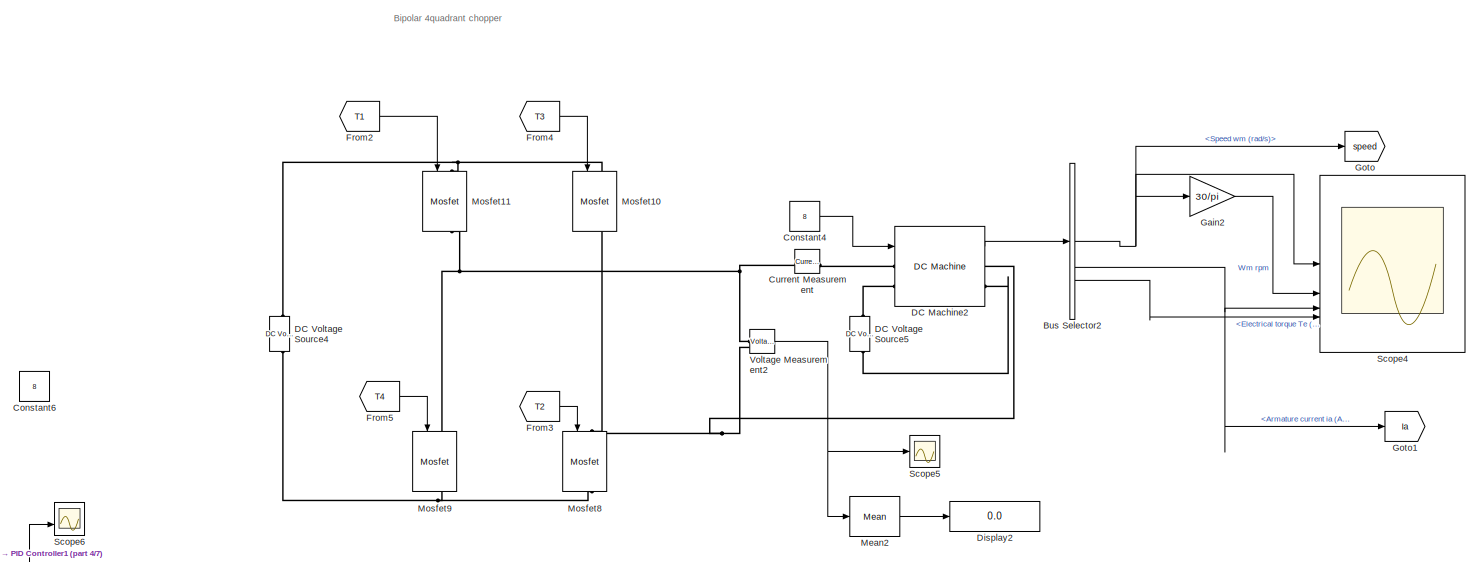
[diagram: root canvas - part 1/7, top right region]
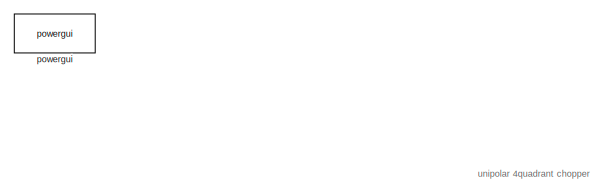
[diagram: root canvas - part 2/7, top left region]
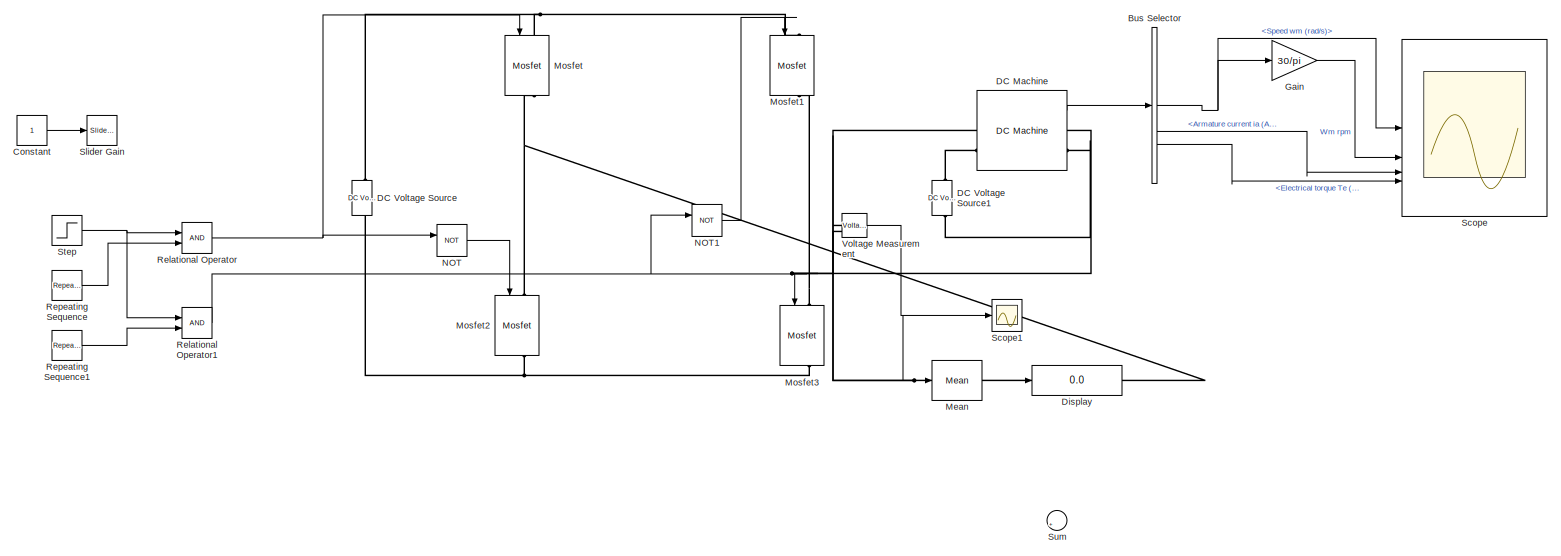
[diagram: root canvas - part 3/7, middle left region]
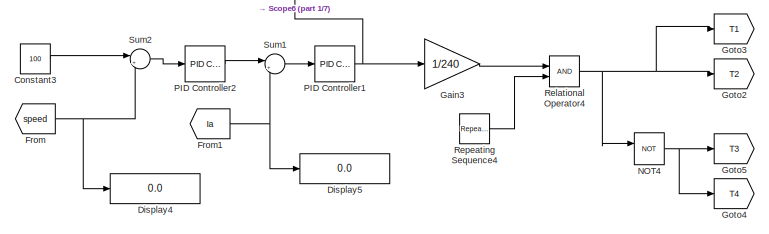
[diagram: root canvas - part 4/7, middle right region]
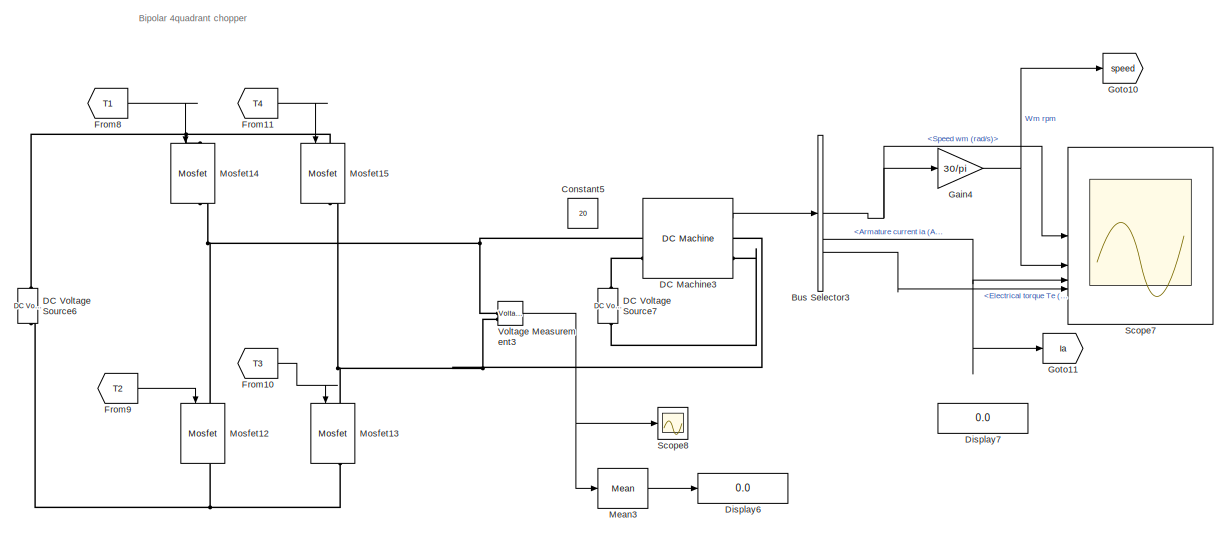
[diagram: root canvas - part 5/7, middle right region]
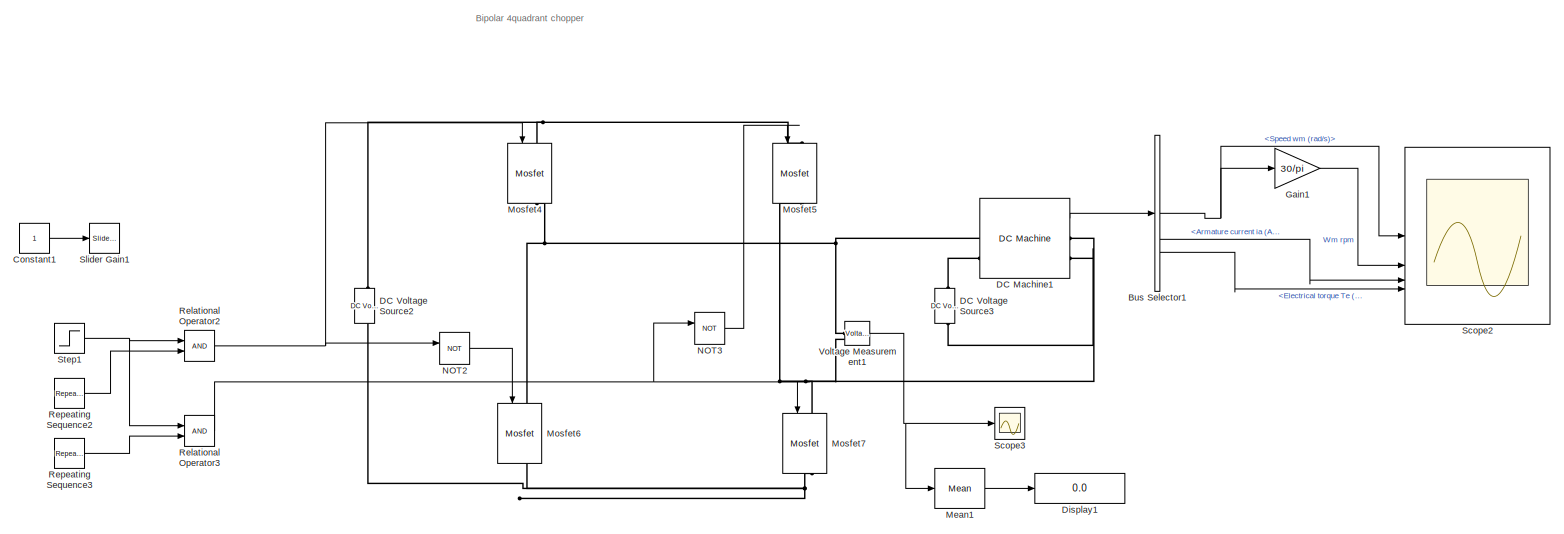
[diagram: root canvas - part 6/7, bottom left region]
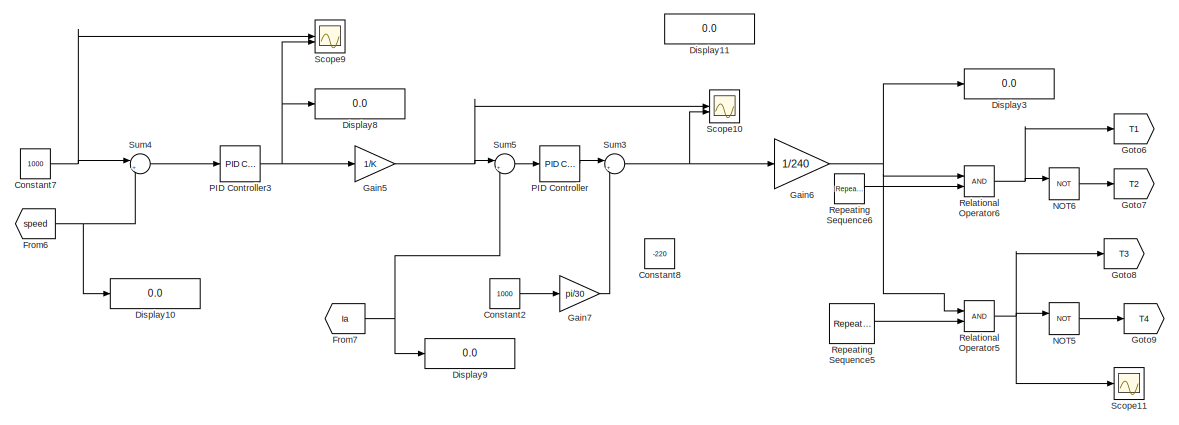
[diagram: root canvas - part 7/7, bottom right region]
MODEL slx_319daf4c872c
KIND model
CONFIG AbsTol = auto
CONFIG EnableMultiTasking = off
CONFIG FixedStep = auto
CONFIG MaxStep = 1e-4
CONFIG MinStep = auto
CONFIG RelTol = 1e-3
CONFIG SampleTimeConstraint = Unconstrained
CONFIG SolverName = ode23tb
CONFIG StartTime = 0.0
CONFIG StopTime = 10
BLOCK [BusSelector] Bus Selector
  Commented = on
  OutputSignals = Speed wm (rad/s),Armature current ia (A),Electrical torque Te (n m)
BLOCK [BusSelector] Bus Selector1
  Commented = on
  OutputSignals = Speed wm (rad/s),Armature current ia (A),Electrical torque Te (n m)
BLOCK [BusSelector] Bus Selector2
  Commented = on
  OutputSignals = Speed wm (rad/s),Armature current ia (A),Electrical torque Te (n m)
BLOCK [BusSelector] Bus Selector3
  OutputSignals = Speed wm (rad/s),Armature current ia (A),Electrical torque Te (n m)
BLOCK [Constant] Constant
  Commented = on
BLOCK [Constant] Constant1
  Commented = on
BLOCK [Constant] Constant2
  Value = 1000
BLOCK [Constant] Constant3
  Commented = on
  Value = 100
BLOCK [Constant] Constant4
  Commented = on
  Value = 8
BLOCK [Constant] Constant5
  Value = 20
BLOCK [Constant] Constant6
  Commented = on
  Value = 8
BLOCK [Constant] Constant7
  Value = 1000
BLOCK [Constant] Constant8
  Value = -220
BLOCK [Reference] Current Measurement  REF=spsCurrentMeasurementLib/Current Measurement
  Commented = on
  LibrarySourceBlock = sps_lib/Sensors and Measurements/Current Measurement
  SourceBlock = spsCurrentMeasurementLib/Current Measurement
  SourceType = Current Measurement
  UserDataPersistent = on
BLOCK [Reference] DC Machine  REF=spsDCMachineLib/DC Machine
  Commented = on
  LibrarySourceBlock = sps_lib/Electrical Machines/DC Machine
  SourceBlock = spsDCMachineLib/DC Machine
  SourceType = DC machine
BLOCK [Reference] DC Machine1  REF=spsDCMachineLib/DC Machine
  Commented = on
  LibrarySourceBlock = sps_lib/Electrical Machines/DC Machine
  SourceBlock = spsDCMachineLib/DC Machine
  SourceType = DC machine
BLOCK [Reference] DC Machine2  REF=spsDCMachineLib/DC Machine
  Commented = on
  LibrarySourceBlock = sps_lib/Electrical Machines/DC Machine
  SourceBlock = spsDCMachineLib/DC Machine
  SourceType = DC machine
BLOCK [Reference] DC Machine3  REF=spsDCMachineLib/DC Machine
  LibrarySourceBlock = sps_lib/Electrical Machines/DC Machine
  SourceBlock = spsDCMachineLib/DC Machine
  SourceType = DC machine
BLOCK [Reference] DC Voltage Source  REF=spsDCVoltageSourceLib/DC Voltage Source
  Commented = on
  LibrarySourceBlock = sps_lib/Sources/DC Voltage Source
  SourceBlock = spsDCVoltageSourceLib/DC Voltage Source
  SourceType = DC Voltage Source
BLOCK [Reference] DC Voltage Source1  REF=spsDCVoltageSourceLib/DC Voltage Source
  Commented = on
  LibrarySourceBlock = sps_lib/Sources/DC Voltage Source
  SourceBlock = spsDCVoltageSourceLib/DC Voltage Source
  SourceType = DC Voltage Source
BLOCK [Reference] DC Voltage Source2  REF=spsDCVoltageSourceLib/DC Voltage Source
  Commented = on
  LibrarySourceBlock = sps_lib/Sources/DC Voltage Source
  SourceBlock = spsDCVoltageSourceLib/DC Voltage Source
  SourceType = DC Voltage Source
BLOCK [Reference] DC Voltage Source3  REF=spsDCVoltageSourceLib/DC Voltage Source
  Commented = on
  LibrarySourceBlock = sps_lib/Sources/DC Voltage Source
  SourceBlock = spsDCVoltageSourceLib/DC Voltage Source
  SourceType = DC Voltage Source
BLOCK [Reference] DC Voltage Source4  REF=spsDCVoltageSourceLib/DC Voltage Source
  Commented = on
  LibrarySourceBlock = sps_lib/Sources/DC Voltage Source
  SourceBlock = spsDCVoltageSourceLib/DC Voltage Source
  SourceType = DC Voltage Source
BLOCK [Reference] DC Voltage Source5  REF=spsDCVoltageSourceLib/DC Voltage Source
  Commented = on
  LibrarySourceBlock = sps_lib/Sources/DC Voltage Source
  SourceBlock = spsDCVoltageSourceLib/DC Voltage Source
  SourceType = DC Voltage Source
BLOCK [Reference] DC Voltage Source6  REF=spsDCVoltageSourceLib/DC Voltage Source
  LibrarySourceBlock = sps_lib/Sources/DC Voltage Source
  SourceBlock = spsDCVoltageSourceLib/DC Voltage Source
  SourceType = DC Voltage Source
BLOCK [Reference] DC Voltage Source7  REF=spsDCVoltageSourceLib/DC Voltage Source
  LibrarySourceBlock = sps_lib/Sources/DC Voltage Source
  SourceBlock = spsDCVoltageSourceLib/DC Voltage Source
  SourceType = DC Voltage Source
BLOCK [Display] Display
  Commented = on
  Decimation = 1
BLOCK [Display] Display1
  Commented = on
  Decimation = 1
BLOCK [Display] Display10
  Decimation = 1
BLOCK [Display] Display11
  Decimation = 1
BLOCK [Display] Display2
  Commented = on
  Decimation = 1
BLOCK [Display] Display3
  Decimation = 1
BLOCK [Display] Display4
  Commented = on
  Decimation = 1
BLOCK [Display] Display5
  Commented = on
  Decimation = 1
BLOCK [Display] Display6
  Decimation = 1
BLOCK [Display] Display7
  Decimation = 1
BLOCK [Display] Display8
  Decimation = 1
BLOCK [Display] Display9
  Decimation = 1
BLOCK [From] From
  Commented = on
  GotoTag = speed
BLOCK [From] From1
  Commented = on
  GotoTag = Ia
BLOCK [From] From10
  GotoTag = T3
BLOCK [From] From11
  GotoTag = T4
BLOCK [From] From2
  Commented = on
  GotoTag = T1
BLOCK [From] From3
  Commented = on
  GotoTag = T2
BLOCK [From] From4
  Commented = on
  GotoTag = T3
BLOCK [From] From5
  Commented = on
  GotoTag = T4
BLOCK [From] From6
  GotoTag = speed
BLOCK [From] From7
  GotoTag = Ia
BLOCK [From] From8
  GotoTag = T1
BLOCK [From] From9
  GotoTag = T2
BLOCK [Gain] Gain
  Commented = on
  Gain = 30/pi
BLOCK [Gain] Gain1
  Commented = on
  Gain = 30/pi
BLOCK [Gain] Gain2
  Commented = on
  Gain = 30/pi
BLOCK [Gain] Gain3
  Commented = on
  Gain = 1/240
BLOCK [Gain] Gain4
  Gain = 30/pi
BLOCK [Gain] Gain5
  Gain = 1/K
BLOCK [Gain] Gain6
  Gain = 1/240
BLOCK [Gain] Gain7
  Gain = pi/30
BLOCK [Goto] Goto
  Commented = on
  GotoTag = speed
BLOCK [Goto] Goto1
  Commented = on
  GotoTag = Ia
BLOCK [Goto] Goto10
  GotoTag = speed
BLOCK [Goto] Goto11
  GotoTag = Ia
BLOCK [Goto] Goto2
  Commented = on
  GotoTag = T2
BLOCK [Goto] Goto3
  Commented = on
  GotoTag = T1
BLOCK [Goto] Goto4
  Commented = on
  GotoTag = T4
BLOCK [Goto] Goto5
  Commented = on
  GotoTag = T3
BLOCK [Goto] Goto6
  GotoTag = T1
BLOCK [Goto] Goto7
  GotoTag = T2
BLOCK [Goto] Goto8
  GotoTag = T3
BLOCK [Goto] Goto9
  GotoTag = T4
BLOCK [Reference] Mean  REF=spsMeanLib/Mean
  Commented = on
  LibrarySourceBlock = sps_lib/Sensors and Measurements/Mean
  SourceBlock = spsMeanLib/Mean
  SourceType = Mean
BLOCK [Reference] Mean1  REF=spsMeanLib/Mean
  Commented = on
  LibrarySourceBlock = sps_lib/Sensors and Measurements/Mean
  SourceBlock = spsMeanLib/Mean
  SourceType = Mean
BLOCK [Reference] Mean2  REF=spsMeanLib/Mean
  Commented = on
  LibrarySourceBlock = sps_lib/Sensors and Measurements/Mean
  SourceBlock = spsMeanLib/Mean
  SourceType = Mean
BLOCK [Reference] Mean3  REF=spsMeanLib/Mean
  LibrarySourceBlock = sps_lib/Sensors and Measurements/Mean
  SourceBlock = spsMeanLib/Mean
  SourceType = Mean
BLOCK [Reference] Mosfet  REF=spsMosfetLib/Mosfet
  Commented = on
  LibrarySourceBlock = sps_lib/Power Electronics/Mosfet
  NameLocation = left
  SourceBlock = spsMosfetLib/Mosfet
  SourceType = Mosfet
BLOCK [Reference] Mosfet1  REF=spsMosfetLib/Mosfet
  Commented = on
  LibrarySourceBlock = sps_lib/Power Electronics/Mosfet
  NameLocation = left
  SourceBlock = spsMosfetLib/Mosfet
  SourceType = Mosfet
BLOCK [Reference] Mosfet10  REF=spsMosfetLib/Mosfet
  Commented = on
  LibrarySourceBlock = sps_lib/Power Electronics/Mosfet
  NameLocation = left
  SourceBlock = spsMosfetLib/Mosfet
  SourceType = Mosfet
BLOCK [Reference] Mosfet11  REF=spsMosfetLib/Mosfet
  Commented = on
  LibrarySourceBlock = sps_lib/Power Electronics/Mosfet
  NameLocation = left
  SourceBlock = spsMosfetLib/Mosfet
  SourceType = Mosfet
BLOCK [Reference] Mosfet12  REF=spsMosfetLib/Mosfet
  LibrarySourceBlock = sps_lib/Power Electronics/Mosfet
  NameLocation = left
  SourceBlock = spsMosfetLib/Mosfet
  SourceType = Mosfet
BLOCK [Reference] Mosfet13  REF=spsMosfetLib/Mosfet
  LibrarySourceBlock = sps_lib/Power Electronics/Mosfet
  NameLocation = left
  SourceBlock = spsMosfetLib/Mosfet
  SourceType = Mosfet
BLOCK [Reference] Mosfet14  REF=spsMosfetLib/Mosfet
  LibrarySourceBlock = sps_lib/Power Electronics/Mosfet
  NameLocation = left
  SourceBlock = spsMosfetLib/Mosfet
  SourceType = Mosfet
BLOCK [Reference] Mosfet15  REF=spsMosfetLib/Mosfet
  LibrarySourceBlock = sps_lib/Power Electronics/Mosfet
  NameLocation = left
  SourceBlock = spsMosfetLib/Mosfet
  SourceType = Mosfet
BLOCK [Reference] Mosfet2  REF=spsMosfetLib/Mosfet
  Commented = on
  LibrarySourceBlock = sps_lib/Power Electronics/Mosfet
  NameLocation = left
  SourceBlock = spsMosfetLib/Mosfet
  SourceType = Mosfet
BLOCK [Reference] Mosfet3  REF=spsMosfetLib/Mosfet
  Commented = on
  LibrarySourceBlock = sps_lib/Power Electronics/Mosfet
  NameLocation = left
  SourceBlock = spsMosfetLib/Mosfet
  SourceType = Mosfet
BLOCK [Reference] Mosfet4  REF=spsMosfetLib/Mosfet
  Commented = on
  LibrarySourceBlock = sps_lib/Power Electronics/Mosfet
  NameLocation = left
  SourceBlock = spsMosfetLib/Mosfet
  SourceType = Mosfet
BLOCK [Reference] Mosfet5  REF=spsMosfetLib/Mosfet
  Commented = on
  LibrarySourceBlock = sps_lib/Power Electronics/Mosfet
  NameLocation = left
  SourceBlock = spsMosfetLib/Mosfet
  SourceType = Mosfet
BLOCK [Reference] Mosfet6  REF=spsMosfetLib/Mosfet
  Commented = on
  LibrarySourceBlock = sps_lib/Power Electronics/Mosfet
  NameLocation = left
  SourceBlock = spsMosfetLib/Mosfet
  SourceType = Mosfet
BLOCK [Reference] Mosfet7  REF=spsMosfetLib/Mosfet
  Commented = on
  LibrarySourceBlock = sps_lib/Power Electronics/Mosfet
  NameLocation = left
  SourceBlock = spsMosfetLib/Mosfet
  SourceType = Mosfet
BLOCK [Reference] Mosfet8  REF=spsMosfetLib/Mosfet
  Commented = on
  LibrarySourceBlock = sps_lib/Power Electronics/Mosfet
  NameLocation = left
  SourceBlock = spsMosfetLib/Mosfet
  SourceType = Mosfet
BLOCK [Reference] Mosfet9  REF=spsMosfetLib/Mosfet
  Commented = on
  LibrarySourceBlock = sps_lib/Power Electronics/Mosfet
  NameLocation = left
  SourceBlock = spsMosfetLib/Mosfet
  SourceType = Mosfet
BLOCK [Logic] NOT
  AllPortsSameDT = off
  Commented = on
  IconShape = distinctive
  Operator = NOT
  OutDataTypeStr = boolean
BLOCK [Logic] NOT1
  AllPortsSameDT = off
  Commented = on
  IconShape = distinctive
  Operator = NOT
  OutDataTypeStr = boolean
BLOCK [Logic] NOT2
  AllPortsSameDT = off
  Commented = on
  IconShape = distinctive
  Operator = NOT
  OutDataTypeStr = boolean
BLOCK [Logic] NOT3
  AllPortsSameDT = off
  Commented = on
  IconShape = distinctive
  Operator = NOT
  OutDataTypeStr = boolean
BLOCK [Logic] NOT4
  AllPortsSameDT = off
  Commented = on
  IconShape = distinctive
  Operator = NOT
  OutDataTypeStr = boolean
BLOCK [Logic] NOT5
  AllPortsSameDT = off
  IconShape = distinctive
  Operator = NOT
  OutDataTypeStr = boolean
BLOCK [Logic] NOT6
  AllPortsSameDT = off
  IconShape = distinctive
  Operator = NOT
  OutDataTypeStr = boolean
BLOCK [Reference] PID Controller  REF=slpidlib/PID Controller
  LibrarySourceBlock = simulink/Continuous/PID Controller
  SourceBlock = slpidlib/PID Controller
  SourceType = PID 1dof
BLOCK [Reference] PID Controller1  REF=slpidlib/PID Controller
  Commented = on
  LibrarySourceBlock = simulink/Continuous/PID Controller
  SourceBlock = slpidlib/PID Controller
  SourceType = PID 1dof
BLOCK [Reference] PID Controller2  REF=slpidlib/PID Controller
  Commented = on
  LibrarySourceBlock = simulink/Continuous/PID Controller
  SourceBlock = slpidlib/PID Controller
  SourceType = PID 1dof
BLOCK [Reference] PID Controller3  REF=slpidlib/PID Controller
  LibrarySourceBlock = simulink/Continuous/PID Controller
  SourceBlock = slpidlib/PID Controller
  SourceType = PID 1dof
BLOCK [RelationalOperator] Relational Operator
  Commented = on
  InputSameDT = off
  OutDataTypeStr = boolean
  RndMeth = Simplest
BLOCK [RelationalOperator] Relational Operator1
  Commented = on
  InputSameDT = off
  OutDataTypeStr = boolean
  RndMeth = Simplest
BLOCK [RelationalOperator] Relational Operator2
  Commented = on
  InputSameDT = off
  OutDataTypeStr = boolean
  RndMeth = Simplest
BLOCK [RelationalOperator] Relational Operator3
  Commented = on
  InputSameDT = off
  OutDataTypeStr = boolean
  RndMeth = Simplest
BLOCK [RelationalOperator] Relational Operator4
  Commented = on
  InputSameDT = off
  OutDataTypeStr = boolean
  RndMeth = Simplest
BLOCK [RelationalOperator] Relational Operator5
  InputSameDT = off
  OutDataTypeStr = boolean
  RndMeth = Simplest
BLOCK [RelationalOperator] Relational Operator6
  InputSameDT = off
  OutDataTypeStr = boolean
  RndMeth = Simplest
BLOCK [Reference] Repeating Sequence  REF=simulink/Sources/Repeating
Sequence
  Commented = on
  SourceBlock = simulink/Sources/Repeating\nSequence
  SourceType = Repeating table
BLOCK [Reference] Repeating Sequence1  REF=simulink/Sources/Repeating
Sequence
  Commented = on
  SourceBlock = simulink/Sources/Repeating\nSequence
  SourceType = Repeating table
BLOCK [Reference] Repeating Sequence2  REF=simulink/Sources/Repeating
Sequence
  Commented = on
  SourceBlock = simulink/Sources/Repeating\nSequence
  SourceType = Repeating table
BLOCK [Reference] Repeating Sequence3  REF=simulink/Sources/Repeating
Sequence
  Commented = on
  SourceBlock = simulink/Sources/Repeating\nSequence
  SourceType = Repeating table
BLOCK [Reference] Repeating Sequence4  REF=simulink/Sources/Repeating
Sequence
  Commented = on
  SourceBlock = simulink/Sources/Repeating\nSequence
  SourceType = Repeating table
BLOCK [Reference] Repeating Sequence5  REF=simulink/Sources/Repeating
Sequence
  SourceBlock = simulink/Sources/Repeating\nSequence
  SourceType = Repeating table
BLOCK [Reference] Repeating Sequence6  REF=simulink/Sources/Repeating
Sequence
  SourceBlock = simulink/Sources/Repeating\nSequence
  SourceType = Repeating table
BLOCK [Scope] Scope
  Commented = on
  Floating = off
  NumInputPorts = 4
  ScopeSpecificationString = Simulink.scopes.TimeScopeBlockCfg('CurrentConfiguration', extmgr.ConfigurationSet(extmgr.Configuration('Core','General UI',true),extmgr.Configuration('Core','Source UI',true),extmgr.Configuration('Sources','WiredSimulink',true),extmgr.Configuration('Visuals','Time Domain',true,'SerializedDisplays',{struct('MinYLimReal','-126.28141','MaxYLimReal','126.28141','YLabelReal','','MinYLimMag',' 0.00000',...<+3487ch>
BLOCK [Scope] Scope1
  Commented = on
  Floating = off
  NumInputPorts = 1
  ScopeSpecificationString = Simulink.scopes.TimeScopeBlockCfg('CurrentConfiguration', extmgr.ConfigurationSet(extmgr.Configuration('Core','General UI',true),extmgr.Configuration('Core','Source UI',true),extmgr.Configuration('Sources','WiredSimulink',true,'DataLoggingVariableName','ScopeData1'),extmgr.Configuration('Visuals','Time Domain',true,'SerializedDisplays',{struct('MinYLimReal','-300.0216','MaxYLimReal','300.00187','Y...<+1459ch>
BLOCK [Scope] Scope10
  Floating = off
  NumInputPorts = 2
  ScopeSpecificationString = Simulink.scopes.TimeScopeBlockCfg('CurrentConfiguration', extmgr.ConfigurationSet(extmgr.Configuration('Core','General UI',true),extmgr.Configuration('Core','Source UI',true),extmgr.Configuration('Sources','WiredSimulink',true,'DataLoggingVariableName','ScopeData1'),extmgr.Configuration('Visuals','Time Domain',true,'SerializedDisplays',{struct('MinYLimReal','90.0036','MaxYLimReal','113.58438','YLa...<+1481ch>
BLOCK [Scope] Scope11
  Floating = off
  NumInputPorts = 1
  ScopeSpecificationString = Simulink.scopes.TimeScopeBlockCfg('CurrentConfiguration', extmgr.ConfigurationSet(extmgr.Configuration('Core','General UI',true),extmgr.Configuration('Core','Source UI',true),extmgr.Configuration('Sources','WiredSimulink',true,'DataLoggingVariableName','ScopeData2'),extmgr.Configuration('Visuals','Time Domain',true,'SerializedDisplays',{struct('MinYLimReal','0.9','MaxYLimReal','1.1','YLabelReal','...<+1370ch>
BLOCK [Scope] Scope2
  Commented = on
  Floating = off
  NumInputPorts = 4
  ScopeSpecificationString = Simulink.scopes.TimeScopeBlockCfg('CurrentConfiguration', extmgr.ConfigurationSet(extmgr.Configuration('Core','General UI',true),extmgr.Configuration('Core','Source UI',true),extmgr.Configuration('Sources','WiredSimulink',true,'DataLoggingVariableName','ScopeData2'),extmgr.Configuration('Visuals','Time Domain',true,'SerializedDisplays',{struct('MinYLimReal','-126.43554','MaxYLimReal','126.57819','...<+3555ch>
BLOCK [Scope] Scope3
  Commented = on
  Floating = off
  NumInputPorts = 1
  ScopeSpecificationString = Simulink.scopes.TimeScopeBlockCfg('CurrentConfiguration', extmgr.ConfigurationSet(extmgr.Configuration('Core','General UI',true),extmgr.Configuration('Core','Source UI',true),extmgr.Configuration('Sources','WiredSimulink',true,'DataLoggingVariableName','ScopeData3'),extmgr.Configuration('Visuals','Time Domain',true,'SerializedDisplays',{struct('MinYLimReal','-305.92724','MaxYLimReal','310.19814','...<+1464ch>
BLOCK [Scope] Scope4
  Commented = on
  Floating = off
  NumInputPorts = 4
  ScopeSpecificationString = Simulink.scopes.TimeScopeBlockCfg('CurrentConfiguration', extmgr.ConfigurationSet(extmgr.Configuration('Core','General UI',true),extmgr.Configuration('Core','Source UI',true),extmgr.Configuration('Sources','WiredSimulink',true,'DataLoggingVariableName','ScopeData1'),extmgr.Configuration('Visuals','Time Domain',true,'SerializedDisplays',{struct('MinYLimReal','-21.96979','MaxYLimReal','207.68783','Y...<+3551ch>
BLOCK [Scope] Scope5
  Commented = on
  Floating = off
  NumInputPorts = 1
  ScopeSpecificationString = Simulink.scopes.TimeScopeBlockCfg('CurrentConfiguration', extmgr.ConfigurationSet(extmgr.Configuration('Core','General UI',true),extmgr.Configuration('Core','Source UI',true),extmgr.Configuration('Sources','WiredSimulink',true,'DataLoggingVariableName','ScopeData2'),extmgr.Configuration('Visuals','Time Domain',true,'SerializedDisplays',{struct('MinYLimReal','-301.38004','MaxYLimReal','301.03838','...<+1464ch>
BLOCK [Scope] Scope6
  Commented = on
  Floating = off
  NumInputPorts = 2
  ScopeSpecificationString = Simulink.scopes.TimeScopeBlockCfg('CurrentConfiguration', extmgr.ConfigurationSet(extmgr.Configuration('Core','General UI',true),extmgr.Configuration('Core','Source UI',true),extmgr.Configuration('Sources','WiredSimulink',true,'DataLoggingVariableName','ScopeData3'),extmgr.Configuration('Visuals','Time Domain',true,'SerializedDisplays',{struct('MinYLimReal','-26.91034','MaxYLimReal','269.6567','YL...<+1496ch>
BLOCK [Scope] Scope7
  Floating = off
  NumInputPorts = 4
  ScopeSpecificationString = Simulink.scopes.TimeScopeBlockCfg('CurrentConfiguration', extmgr.ConfigurationSet(extmgr.Configuration('Core','General UI',true),extmgr.Configuration('Core','Source UI',true),extmgr.Configuration('Sources','WiredSimulink',true,'DataLoggingVariableName','ScopeData7'),extmgr.Configuration('Visuals','Time Domain',true,'SerializedDisplays',{struct('MinYLimReal','-12.99213','MaxYLimReal','126.92682','Y...<+3554ch>
BLOCK [Scope] Scope8
  Floating = off
  NumInputPorts = 1
  ScopeSpecificationString = Simulink.scopes.TimeScopeBlockCfg('CurrentConfiguration', extmgr.ConfigurationSet(extmgr.Configuration('Core','General UI',true),extmgr.Configuration('Core','Source UI',true),extmgr.Configuration('Sources','WiredSimulink',true,'DataLoggingVariableName','ScopeData8'),extmgr.Configuration('Visuals','Time Domain',true,'SerializedDisplays',{struct('MinYLimReal','-300.0216','MaxYLimReal','300.00187','Y...<+1460ch>
BLOCK [Scope] Scope9
  Floating = off
  NumInputPorts = 2
  ScopeSpecificationString = Simulink.scopes.TimeScopeBlockCfg('CurrentConfiguration', extmgr.ConfigurationSet(extmgr.Configuration('Core','General UI',true),extmgr.Configuration('Core','Source UI',true),extmgr.Configuration('Sources','WiredSimulink',true,'DataLoggingVariableName','ScopeData3'),extmgr.Configuration('Visuals','Time Domain',true,'SerializedDisplays',{struct('MinYLimReal','-139.15094','MaxYLimReal','1126.57233',...<+1429ch>
BLOCK [Reference] Slider Gain  REF=simulink/Math
Operations/Slider
Gain
  Commented = on
  SourceBlock = simulink/Math\nOperations/Slider\nGain
  SourceType = Slider Gain
BLOCK [Reference] Slider Gain1  REF=simulink/Math
Operations/Slider
Gain
  Commented = on
  SourceBlock = simulink/Math\nOperations/Slider\nGain
  SourceType = Slider Gain
BLOCK [Step] Step
  After = -0.5
  Before = 0.5
  Commented = on
  SampleTime = 0
  Time = 5
BLOCK [Step] Step1
  After = -0.5
  Before = 0.5
  Commented = on
  SampleTime = 0
  Time = 5
BLOCK [Sum] Sum
  Commented = on
  Inputs = |+-
BLOCK [Sum] Sum1
  Commented = on
  Inputs = |+-
BLOCK [Sum] Sum2
  Commented = on
  Inputs = |+-
BLOCK [Sum] Sum3
  Inputs = |++
BLOCK [Sum] Sum4
  Inputs = |+-
BLOCK [Sum] Sum5
  Inputs = |+-
BLOCK [Reference] Voltage Measurement  REF=spsVoltageMeasurementLib/Voltage Measurement
  Commented = on
  LibrarySourceBlock = sps_lib/Sensors and Measurements/Voltage Measurement
  SourceBlock = spsVoltageMeasurementLib/Voltage Measurement
  SourceType = Voltage Measurement
  UserDataPersistent = on
BLOCK [Reference] Voltage Measurement1  REF=spsVoltageMeasurementLib/Voltage Measurement
  Commented = on
  LibrarySourceBlock = sps_lib/Sensors and Measurements/Voltage Measurement
  SourceBlock = spsVoltageMeasurementLib/Voltage Measurement
  SourceType = Voltage Measurement
  UserDataPersistent = on
BLOCK [Reference] Voltage Measurement2  REF=spsVoltageMeasurementLib/Voltage Measurement
  Commented = on
  LibrarySourceBlock = sps_lib/Sensors and Measurements/Voltage Measurement
  SourceBlock = spsVoltageMeasurementLib/Voltage Measurement
  SourceType = Voltage Measurement
  UserDataPersistent = on
BLOCK [Reference] Voltage Measurement3  REF=spsVoltageMeasurementLib/Voltage Measurement
  LibrarySourceBlock = sps_lib/Sensors and Measurements/Voltage Measurement
  SourceBlock = spsVoltageMeasurementLib/Voltage Measurement
  SourceType = Voltage Measurement
  UserDataPersistent = on
BLOCK [Reference] powergui  REF=sps_lib/powergui
  Priority = 1
  SourceBlock = sps_lib/powergui
  SourceType = PSB option menu block
ANNOTATION (root): Bipolar 4quadrant chopper
ANNOTATION (root): unipolar 4quadrant chopper
NET Bus Selector1:1 -> Gain1:1, Scope2:1
LINE Bus Selector1:2 -> Scope2:3
LINE Bus Selector1:3 -> Scope2:4
NET Bus Selector2:1 -> Gain2:1, Goto:1, Scope4:1
NET Bus Selector2:2 -> Goto1:1, Scope4:3
LINE Bus Selector2:3 -> Scope4:4
NET Bus Selector3:1 -> Gain4:1, Scope7:1
NET Bus Selector3:2 -> Goto11:1, Scope7:3
LINE Bus Selector3:3 -> Scope7:4
NET Bus Selector:1 -> Gain:1, Scope:1
LINE Bus Selector:2 -> Scope:3
LINE Bus Selector:3 -> Scope:4
LINE Constant1:1 -> Slider Gain1:1
LINE Constant2:1 -> Gain7:1
LINE Constant3:1 -> Sum2:1
LINE Constant4:1 -> DC Machine2:1
NET Constant7:1 -> Scope9:1, Sum4:1
LINE Constant:1 -> Slider Gain:1
LINE DC Machine1:1 -> Bus Selector1:1
LINE DC Machine2:1 -> Bus Selector2:1
LINE DC Machine3:1 -> Bus Selector3:1
LINE DC Machine:1 -> Bus Selector:1
LINE From10:1 -> Mosfet13:1
LINE From11:1 -> Mosfet15:1
NET From1:1 -> Display5:1, Sum1:2
LINE From2:1 -> Mosfet11:1
LINE From3:1 -> Mosfet8:1
LINE From4:1 -> Mosfet10:1
LINE From5:1 -> Mosfet9:1
NET From6:1 -> Display10:1, Sum4:2
NET From7:1 -> Display9:1, Sum5:2
LINE From8:1 -> Mosfet14:1
LINE From9:1 -> Mosfet12:1
NET From:1 -> Display4:1, Sum2:2
LINE Gain1:1 -> Scope2:2
LINE Gain2:1 -> Scope4:2
LINE Gain3:1 -> Relational Operator4:1
NET Gain4:1 -> Goto10:1, Scope7:2
NET Gain5:1 -> Scope10:1, Sum5:1
NET Gain6:1 -> Display3:1, Relational Operator5:1, Relational Operator6:1
LINE Gain7:1 -> Sum3:2
LINE Gain:1 -> Scope:2
LINE Mean1:1 -> Display1:1
LINE Mean2:1 -> Display2:1
LINE Mean3:1 -> Display6:1
LINE Mean:1 -> Display:1
LINE NOT1:1 -> Mosfet1:1
LINE NOT2:1 -> Mosfet6:1
LINE NOT3:1 -> Mosfet5:1
NET NOT4:1 -> Goto4:1, Goto5:1
LINE NOT5:1 -> Goto9:1
LINE NOT6:1 -> Goto7:1
LINE NOT:1 -> Mosfet2:1
NET PID Controller1:1 -> Gain3:1, Scope6:2
LINE PID Controller2:1 -> Sum1:1
NET PID Controller3:1 -> Display8:1, Gain5:1, Scope9:2
LINE PID Controller:1 -> Sum3:1
NET Relational Operator1:1 -> Mosfet3:1, NOT1:1
NET Relational Operator2:1 -> Mosfet4:1, NOT2:1
NET Relational Operator3:1 -> Mosfet7:1, NOT3:1
NET Relational Operator4:1 -> Goto2:1, Goto3:1, NOT4:1
NET Relational Operator5:1 -> Goto8:1, NOT5:1, Scope11:1
NET Relational Operator6:1 -> Goto6:1, NOT6:1
NET Relational Operator:1 -> Mosfet:1, NOT:1
LINE Repeating Sequence1:1 -> Relational Operator1:2
LINE Repeating Sequence2:1 -> Relational Operator2:2
LINE Repeating Sequence3:1 -> Relational Operator3:2
LINE Repeating Sequence4:1 -> Relational Operator4:2
LINE Repeating Sequence5:1 -> Relational Operator5:2
LINE Repeating Sequence6:1 -> Relational Operator6:2
LINE Repeating Sequence:1 -> Relational Operator:2
NET Step1:1 -> Relational Operator2:1, Relational Operator3:1
NET Step:1 -> Relational Operator1:1, Relational Operator:1
LINE Sum1:1 -> PID Controller1:1
LINE Sum2:1 -> PID Controller2:1
NET Sum3:1 -> Gain6:1, Scope10:2
LINE Sum4:1 -> PID Controller3:1
LINE Sum5:1 -> PID Controller:1
NET Voltage Measurement1:1 -> Mean1:1, Scope3:1
NET Voltage Measurement2:1 -> Mean2:1, Scope5:1
NET Voltage Measurement3:1 -> Mean3:1, Scope8:1
NET Voltage Measurement:1 -> Mean:1, Scope1:1
PNET net1: Current Measurement:LConn1 -- Mosfet11:RConn1 -- Mosfet9:LConn1 -- Voltage Measurement2:LConn1
PLINE Current Measurement:RConn1 -- DC Machine2:LConn1
PNET net2: DC Machine1:LConn1 -- Mosfet4:RConn1 -- Mosfet6:LConn1 -- Voltage Measurement1:LConn1
PLINE DC Machine1:LConn2 -- DC Voltage Source3:RConn1
PNET net3: DC Machine1:RConn1 -- Mosfet5:RConn1 -- Mosfet7:LConn1 -- Voltage Measurement1:LConn2
PLINE DC Machine1:RConn2 -- DC Voltage Source3:LConn1
PLINE DC Machine2:LConn2 -- DC Voltage Source5:RConn1
PNET net4: DC Machine2:RConn1 -- Mosfet10:RConn1 -- Mosfet8:LConn1 -- Voltage Measurement2:LConn2
PLINE DC Machine2:RConn2 -- DC Voltage Source5:LConn1
PNET net5: DC Machine3:LConn1 -- Mosfet12:LConn1 -- Mosfet14:RConn1 -- Voltage Measurement3:LConn1
PLINE DC Machine3:LConn2 -- DC Voltage Source7:RConn1
PNET net6: DC Machine3:RConn1 -- Mosfet13:LConn1 -- Mosfet15:RConn1 -- Voltage Measurement3:LConn2
PLINE DC Machine3:RConn2 -- DC Voltage Source7:LConn1
PNET net7: DC Machine:LConn1 -- Mosfet2:LConn1 -- Mosfet:RConn1 -- Voltage Measurement:LConn1
PLINE DC Machine:LConn2 -- DC Voltage Source1:RConn1
PNET net8: DC Machine:RConn1 -- Mosfet1:RConn1 -- Mosfet3:LConn1 -- Voltage Measurement:LConn2
PLINE DC Machine:RConn2 -- DC Voltage Source1:LConn1
PNET net9: DC Voltage Source2:LConn1 -- Mosfet6:RConn1 -- Mosfet7:RConn1
PNET net10: DC Voltage Source2:RConn1 -- Mosfet4:LConn1 -- Mosfet5:LConn1
PNET net11: DC Voltage Source4:LConn1 -- Mosfet8:RConn1 -- Mosfet9:RConn1
PNET net12: DC Voltage Source4:RConn1 -- Mosfet10:LConn1 -- Mosfet11:LConn1
PNET net13: DC Voltage Source6:LConn1 -- Mosfet12:RConn1 -- Mosfet13:RConn1
PNET net14: DC Voltage Source6:RConn1 -- Mosfet14:LConn1 -- Mosfet15:LConn1
PNET net15: DC Voltage Source:LConn1 -- Mosfet2:RConn1 -- Mosfet3:RConn1
PNET net16: DC Voltage Source:RConn1 -- Mosfet1:LConn1 -- Mosfet:LConn1
note: NET lines group one-source signal fan-out (src -> all destinations, sorted); 1:1 wires keep LINE; PNET lines group multi-terminal physical nets as a canonical sorted terminal list (undirected conserving connections); 2-terminal nets keep the pairwise PLINE form
